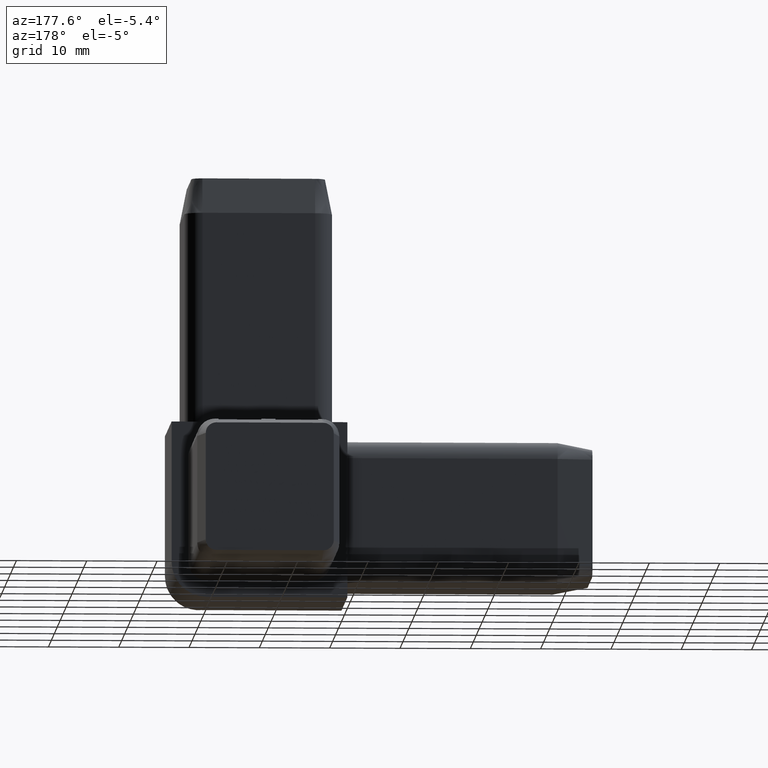
[diagram: clean part render]
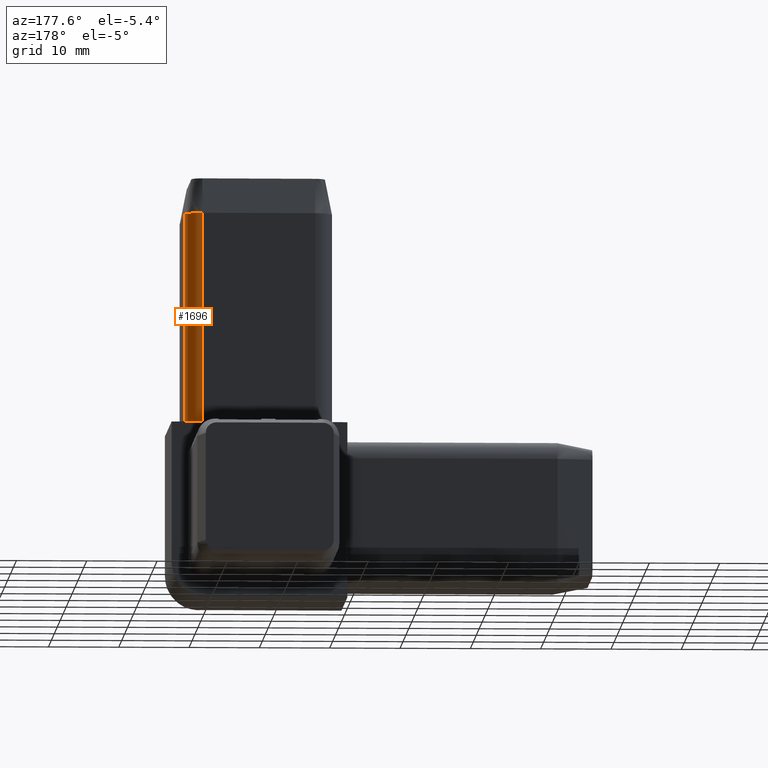
[diagram: same view with one face highlighted and labeled with its STEP entity id]
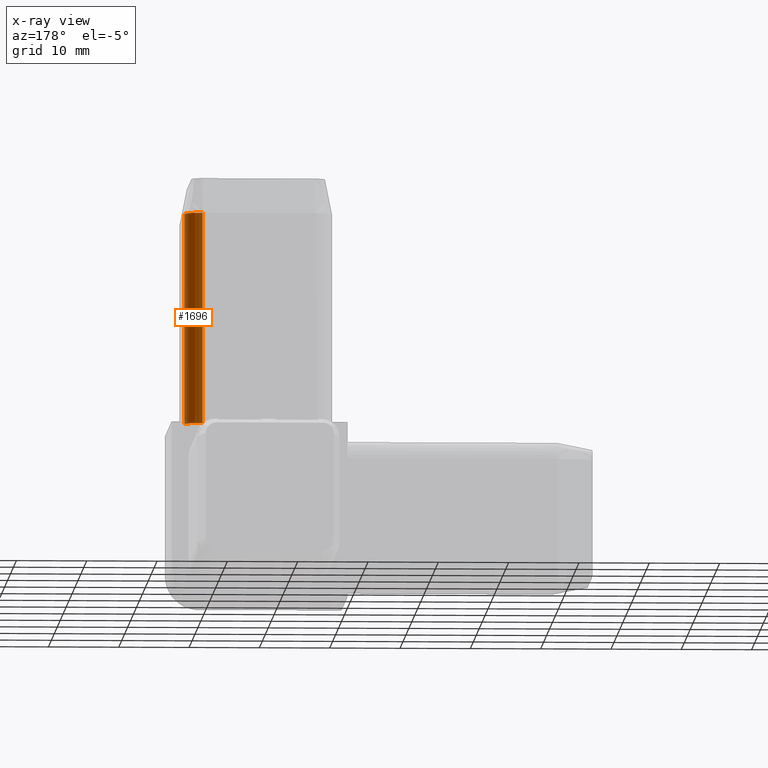
[diagram: x-ray of the same camera — body ghosted, the highlighted face saturated]
A machine part, auxiliary view. The second image highlights one B-rep face of the part: STEP entity #1696.
The next image is the same camera in x-ray: the body ghosted, the highlighted face saturated — about 0% of this face is hidden behind the body in this view.
In plain terms, the highlighted cylindrical surface (edge-blend (fillet) strip) has radius 2.5 mm, axis along (0, 0, 1).
Its self-contained STEP definition (entity closure, byte-faithful):
#78=CARTESIAN_POINT('',(20.500000000000000,-2.0,0.0));
#79=VERTEX_POINT('',#78);
#86=CARTESIAN_POINT('',(23.0,-4.500000000000000,0.0));
#87=VERTEX_POINT('',#86);
#88=CARTESIAN_POINT('',(20.500000000000000,-4.500000000000000,0.0));
#89=DIRECTION('',(0.0,0.0,1.0));
#90=DIRECTION('',(1.0,0.0,0.0));
#91=AXIS2_PLACEMENT_3D('',#88,#89,#90);
#92=CIRCLE('',#91,2.500000000000000);
#93=EDGE_CURVE('',#87,#79,#92,.T.);
#1258=CARTESIAN_POINT('',(23.0,-4.500000000000000,30.000000000000028));
#1259=VERTEX_POINT('',#1258);
#1260=CARTESIAN_POINT('',(23.0,-4.500000000000000,0.0));
#1261=DIRECTION('',(0.0,0.0,1.0));
#1262=VECTOR('',#1261,30.000000000000028);
#1263=LINE('',#1260,#1262);
#1264=EDGE_CURVE('',#87,#1259,#1263,.T.);
#1661=CARTESIAN_POINT('',(20.500000000000000,-2.0,30.000000000000028));
#1662=VERTEX_POINT('',#1661);
#1669=CARTESIAN_POINT('',(20.500000000000000,-2.0,0.0));
#1670=DIRECTION('',(0.0,0.0,1.0));
#1671=VECTOR('',#1670,30.000000000000028);
#1672=LINE('',#1669,#1671);
#1673=EDGE_CURVE('',#79,#1662,#1672,.T.);
#1679=CARTESIAN_POINT('',(20.500000000000000,-4.500000000000000,0.0));
#1680=DIRECTION('',(0.0,0.0,1.0));
#1681=DIRECTION('',(1.0,0.0,0.0));
#1682=AXIS2_PLACEMENT_3D('',#1679,#1680,#1681);
#1683=CYLINDRICAL_SURFACE('',#1682,2.500000000000000);
#1684=ORIENTED_EDGE('',*,*,#1673,.T.);
#1685=CARTESIAN_POINT('',(20.500000000000000,-4.500000000000000,30.000000000000028));
#1686=DIRECTION('',(0.0,0.0,1.0));
#1687=DIRECTION('',(1.0,0.0,0.0));
#1688=AXIS2_PLACEMENT_3D('',#1685,#1686,#1687);
#1689=CIRCLE('',#1688,2.500000000000000);
#1690=EDGE_CURVE('',#1259,#1662,#1689,.T.);
#1691=ORIENTED_EDGE('',*,*,#1690,.F.);
#1692=ORIENTED_EDGE('',*,*,#1264,.F.);
#1693=ORIENTED_EDGE('',*,*,#93,.T.);
#1694=EDGE_LOOP('',(#1684,#1691,#1692,#1693));
#1695=FACE_OUTER_BOUND('',#1694,.T.);
#1696=ADVANCED_FACE('',(#1695),#1683,.T.);